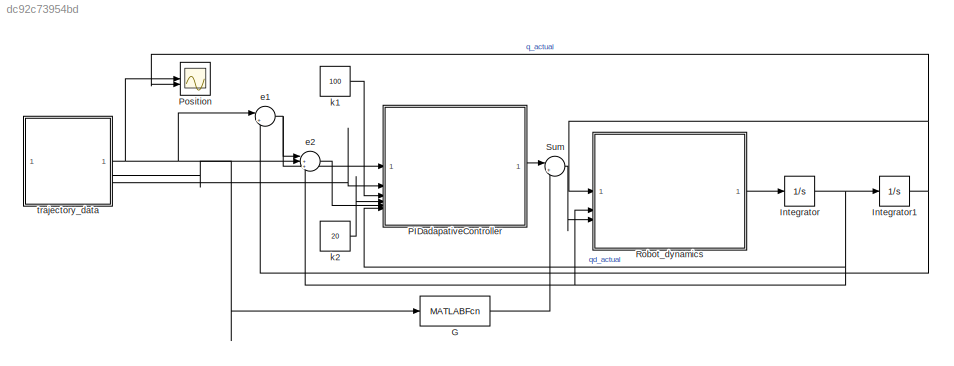
MODEL slx_dc92c73954bd
KIND model
CONFIG AbsTol = auto
CONFIG EnableMultiTasking = off
CONFIG FixedStep = auto
CONFIG MaxStep = auto
CONFIG MinStep = auto
CONFIG RelTol = 1e-3
CONFIG SampleTimeConstraint = Unconstrained
CONFIG SolverName = VariableStepAuto
CONFIG StartTime = 0.0
CONFIG StopTime = 4
BLOCK [MATLABFcn] G
  MATLABFcn = my_gravity_torque(u)
  OutputDimensions = 6
BLOCK [Integrator] Integrator
BLOCK [Integrator] Integrator1
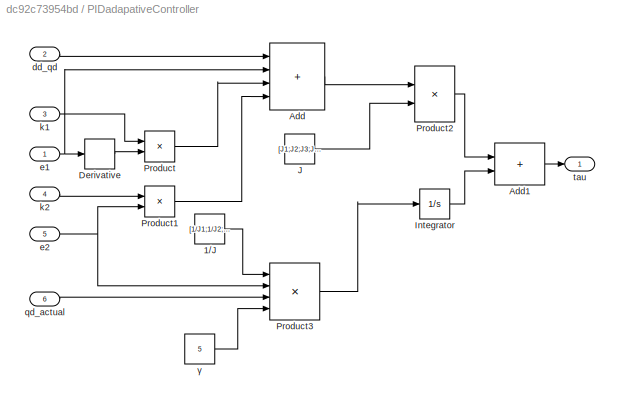
BLOCK [SubSystem] PIDadapativeController
BLOCK [Constant] PIDadapativeController/1//J
  Value = [1/J1;1/J2;1/J3;1/J4;1/J5;1/J6]
BLOCK [Sum] PIDadapativeController/Add
  IconShape = rectangular
  Inputs = ++++
BLOCK [Sum] PIDadapativeController/Add1
  IconShape = rectangular
BLOCK [Derivative] PIDadapativeController/Derivative
BLOCK [Integrator] PIDadapativeController/Integrator
  LimitOutput = on
  LowerSaturationLimit = 0
BLOCK [Constant] PIDadapativeController/J
  Value = [J1;J2;J3;J4;J5;J6]
BLOCK [Product] PIDadapativeController/Product
BLOCK [Product] PIDadapativeController/Product1
BLOCK [Product] PIDadapativeController/Product2
BLOCK [Product] PIDadapativeController/Product3
  Inputs = 4
BLOCK [Inport] PIDadapativeController/dd_qd
  Port = 2
BLOCK [Inport] PIDadapativeController/e1
BLOCK [Inport] PIDadapativeController/e2
  Port = 5
BLOCK [Inport] PIDadapativeController/k1
  Port = 3
BLOCK [Inport] PIDadapativeController/k2
  Port = 4
BLOCK [Inport] PIDadapativeController/qd_actual
  Port = 6
BLOCK [Outport] PIDadapativeController/tau
BLOCK [Constant] PIDadapativeController/γ
  Value = 5
BLOCK [Scope] Position
  Floating = off
  NumInputPorts = 2
  ScopeSpecificationString = Simulink.scopes.TimeScopeBlockCfg('CurrentConfiguration', extmgr.ConfigurationSet(extmgr.Configuration('Core','General UI',true),extmgr.Configuration('Core','Source UI',true),extmgr.Configuration('Sources','WiredSimulink',true),extmgr.Configuration('Visuals','Time Domain',true,'SerializedDisplays',{struct('MinYLimReal','-2.48752','MaxYLimReal','1.44369','YLabelReal','','MinYLimMag','0.00000','MaxY...<+1853ch>
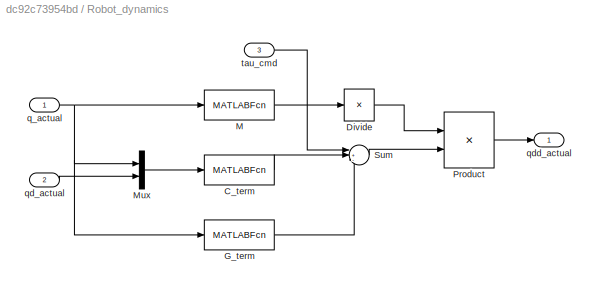
BLOCK [SubSystem] Robot_dynamics
BLOCK [MATLABFcn] Robot_dynamics/C_term
  MATLABFcn = my_velocity_product(u)
  OutputDimensions = 6
BLOCK [Product] Robot_dynamics/Divide
  Inputs = /
  Multiplication = Matrix(*)
BLOCK [MATLABFcn] Robot_dynamics/G_term
  MATLABFcn = my_gravity_torque(u)
  OutputDimensions = 6
BLOCK [MATLABFcn] Robot_dynamics/M
  MATLABFcn = my_mass_matrix(u)
  Output1D = off
  OutputDimensions = [6 6]
BLOCK [Mux] Robot_dynamics/Mux
  DisplayOption = bar
  Inputs = 2
BLOCK [Product] Robot_dynamics/Product
  Multiplication = Matrix(*)
BLOCK [Sum] Robot_dynamics/Sum
  Inputs = |+--
BLOCK [Inport] Robot_dynamics/q_actual
BLOCK [Inport] Robot_dynamics/qd_actual
  Port = 2
BLOCK [Outport] Robot_dynamics/qdd_actual
BLOCK [Inport] Robot_dynamics/tau_cmd
  Port = 3
BLOCK [Sum] Sum
  Inputs = |++
BLOCK [Sum] e1
  Inputs = |+-
  NameLocation = top
BLOCK [Sum] e2
  Inputs = |++-
  NameLocation = top
BLOCK [Constant] k1
  Value = 100
BLOCK [Constant] k2
  Value = 20
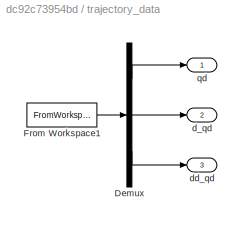
BLOCK [SubSystem] trajectory_data
BLOCK [Demux] trajectory_data/Demux
  Outputs = 3
BLOCK [FromWorkspace] trajectory_data/From Workspace1
  VariableName = trajectory_data
BLOCK [Outport] trajectory_data/d_qd
  Port = 2
BLOCK [Outport] trajectory_data/dd_qd
  Port = 3
BLOCK [Outport] trajectory_data/qd
LINE G:1 -> Sum:2
NET Integrator1:1 -> Position:2, Robot_dynamics:1, e1:2
NET Integrator:1 -> Integrator1:1, PIDadapativeController:6, Robot_dynamics:2, e2:3
LINE PIDadapativeController/1//J:1 -> PIDadapativeController/Product3:1
LINE PIDadapativeController/Add1:1 -> PIDadapativeController/tau:1
LINE PIDadapativeController/Add:1 -> PIDadapativeController/Product2:1
LINE PIDadapativeController/Derivative:1 -> PIDadapativeController/Product:2
LINE PIDadapativeController/Integrator:1 -> PIDadapativeController/Add1:2
LINE PIDadapativeController/J:1 -> PIDadapativeController/Product2:2
LINE PIDadapativeController/Product1:1 -> PIDadapativeController/Add:4
LINE PIDadapativeController/Product2:1 -> PIDadapativeController/Add1:1
LINE PIDadapativeController/Product3:1 -> PIDadapativeController/Integrator:1
LINE PIDadapativeController/Product:1 -> PIDadapativeController/Add:3
LINE PIDadapativeController/dd_qd:1 -> PIDadapativeController/Add:1
NET PIDadapativeController/e1:1 -> PIDadapativeController/Add:2, PIDadapativeController/Derivative:1
NET PIDadapativeController/e2:1 -> PIDadapativeController/Product1:2, PIDadapativeController/Product3:2
LINE PIDadapativeController/k1:1 -> PIDadapativeController/Product:1
LINE PIDadapativeController/k2:1 -> PIDadapativeController/Product1:1
LINE PIDadapativeController/qd_actual:1 -> PIDadapativeController/Product3:3
LINE PIDadapativeController/γ:1 -> PIDadapativeController/Product3:4
LINE PIDadapativeController:1 -> Sum:1
LINE Robot_dynamics/C_term:1 -> Robot_dynamics/Sum:2
LINE Robot_dynamics/Divide:1 -> Robot_dynamics/Product:1
LINE Robot_dynamics/G_term:1 -> Robot_dynamics/Sum:3
LINE Robot_dynamics/M:1 -> Robot_dynamics/Divide:1
LINE Robot_dynamics/Mux:1 -> Robot_dynamics/C_term:1
LINE Robot_dynamics/Product:1 -> Robot_dynamics/qdd_actual:1
LINE Robot_dynamics/Sum:1 -> Robot_dynamics/Product:2
NET Robot_dynamics/q_actual:1 -> Robot_dynamics/G_term:1, Robot_dynamics/M:1, Robot_dynamics/Mux:1
LINE Robot_dynamics/qd_actual:1 -> Robot_dynamics/Mux:2
LINE Robot_dynamics/tau_cmd:1 -> Robot_dynamics/Sum:1
LINE Robot_dynamics:1 -> Integrator:1
LINE Sum:1 -> Robot_dynamics:3
NET e1:1 -> PIDadapativeController:1, e2:1
LINE e2:1 -> PIDadapativeController:5
LINE k1:1 -> PIDadapativeController:3
LINE k2:1 -> PIDadapativeController:4
LINE trajectory_data/Demux:1 -> trajectory_data/qd:1
LINE trajectory_data/Demux:2 -> trajectory_data/d_qd:1
LINE trajectory_data/Demux:3 -> trajectory_data/dd_qd:1
LINE trajectory_data/From Workspace1:1 -> trajectory_data/Demux:1
NET trajectory_data:1 -> G:1, Position:1, e1:1
LINE trajectory_data:2 -> e2:2
LINE trajectory_data:3 -> PIDadapativeController:2
note: NET lines group one-source signal fan-out (src -> all destinations, sorted); 1:1 wires keep LINE
